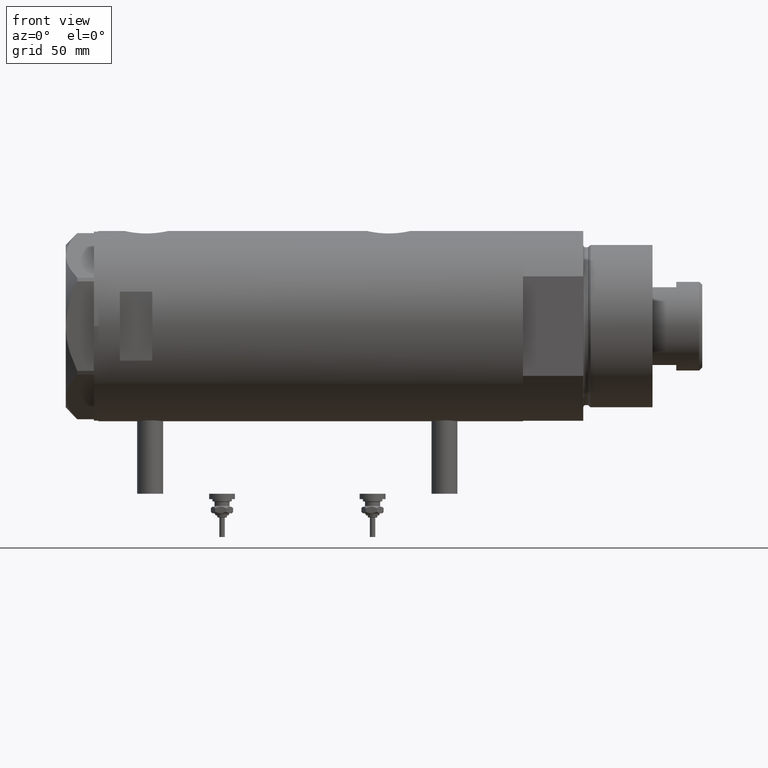
[diagram: clean part render]
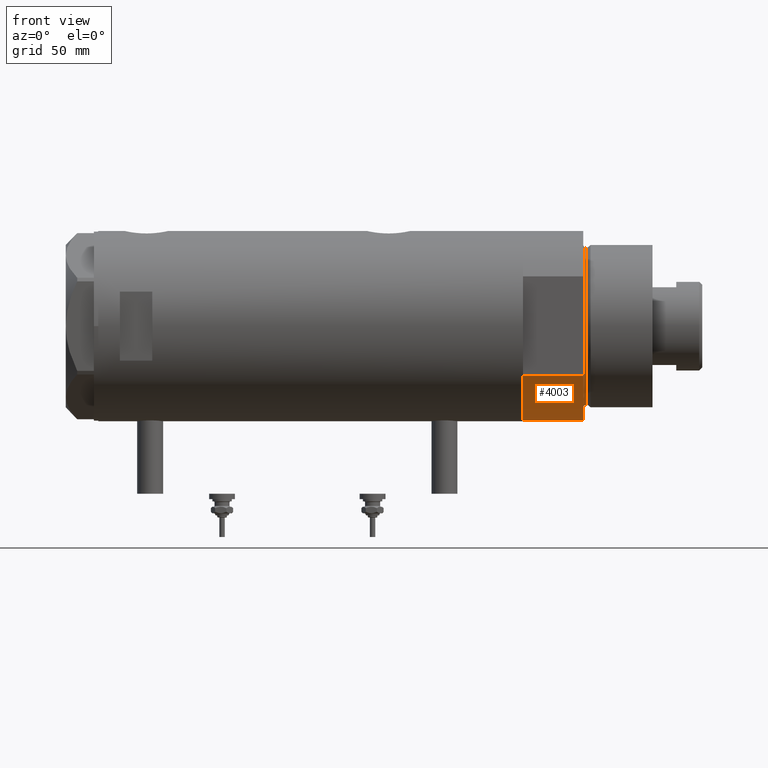
[diagram: same view with one face highlighted and labeled with its STEP entity id]
A machine part, front view. The second image highlights one B-rep face of the part: STEP entity #4003.
In plain terms, the highlighted cylindrical surface (partial cylindrical patch) has radius 44 mm, axis along (-1, -0, 0).
Its self-contained STEP definition (entity closure, byte-faithful):
#11 = ORIENTED_EDGE ( 'NONE', *, *, #1186, .F. ) ;
#52 = VERTEX_POINT ( 'NONE', #3089 ) ;
#963 = VERTEX_POINT ( 'NONE', #5971 ) ;
#1049 = EDGE_LOOP ( 'NONE', ( #11, #1832, #3093, #5922 ) ) ;
#1106 = EDGE_CURVE ( 'NONE', #963, #5779, #2052, .T. ) ;
#1186 = EDGE_CURVE ( 'NONE', #1213, #52, #3299, .T. ) ;
#1213 = VERTEX_POINT ( 'NONE', #3007 ) ;
#1593 = DIRECTION ( 'NONE',  ( 0.000000000000000000, 0.000000000000000000, 1.000000000000000000 ) ) ;
#1626 = CARTESIAN_POINT ( 'NONE',  ( 23.01629857296780557, 37.50000000000000000, 0.000000000000000000 ) ) ;
#1734 = CYLINDRICAL_SURFACE ( 'NONE', #5655, 44.00000000000000000 ) ;
#1832 = ORIENTED_EDGE ( 'NONE', *, *, #5130, .F. ) ;
#2052 = CIRCLE ( 'NONE', #2441, 44.00000000000000000 ) ;
#2441 = AXIS2_PLACEMENT_3D ( 'NONE', #3887, #1593, #2442 ) ;
#2442 = DIRECTION ( 'NONE',  ( 1.000000000000000000, 0.000000000000000000, 0.000000000000000000 ) ) ;
#2923 = AXIS2_PLACEMENT_3D ( 'NONE', #5330, #4992, #3043 ) ;
#2979 = LINE ( 'NONE', #1626, #3614 ) ;
#3007 = CARTESIAN_POINT ( 'NONE',  ( 23.01629857296780557, -37.50000000000000000, 27.89999999999999858 ) ) ;
#3043 = DIRECTION ( 'NONE',  ( 1.000000000000000000, 0.000000000000000000, 0.000000000000000000 ) ) ;
#3089 = CARTESIAN_POINT ( 'NONE',  ( 23.01629857296780557, 37.50000000000000000, 27.89999999999999858 ) ) ;
#3093 = ORIENTED_EDGE ( 'NONE', *, *, #1106, .T. ) ;
#3095 = DIRECTION ( 'NONE',  ( -0.000000000000000000, -0.000000000000000000, 1.000000000000000000 ) ) ;
#3299 = CIRCLE ( 'NONE', #2923, 44.00000000000000000 ) ;
#3435 = CARTESIAN_POINT ( 'NONE',  ( 0.000000000000000000, 0.000000000000000000, 27.89999999999999858 ) ) ;
#3614 = VECTOR ( 'NONE', #3095, 1000.000000000000000 ) ;
#3887 = CARTESIAN_POINT ( 'NONE',  ( 0.000000000000000000, 0.000000000000000000, 0.000000000000000000 ) ) ;
#3893 = DIRECTION ( 'NONE',  ( -1.000000000000000000, 0.000000000000000000, 0.000000000000000000 ) ) ;
#3924 = FACE_OUTER_BOUND ( 'NONE', #1049, .T. ) ;
#4003 = ADVANCED_FACE ( 'NONE', ( #3924 ), #1734, .T. ) ;
#4413 = DIRECTION ( 'NONE',  ( -0.000000000000000000, -0.000000000000000000, -1.000000000000000000 ) ) ;
#4432 = CARTESIAN_POINT ( 'NONE',  ( 23.01629857296780557, 37.50000000000000000, 0.000000000000000000 ) ) ;
#4697 = LINE ( 'NONE', #5135, #5476 ) ;
#4992 = DIRECTION ( 'NONE',  ( 0.000000000000000000, 0.000000000000000000, 1.000000000000000000 ) ) ;
#5130 = EDGE_CURVE ( 'NONE', #963, #1213, #4697, .T. ) ;
#5135 = CARTESIAN_POINT ( 'NONE',  ( 23.01629857296780557, -37.50000000000000000, 0.000000000000000000 ) ) ;
#5330 = CARTESIAN_POINT ( 'NONE',  ( 0.000000000000000000, 0.000000000000000000, 27.89999999999999858 ) ) ;
#5476 = VECTOR ( 'NONE', #5710, 1000.000000000000000 ) ;
#5655 = AXIS2_PLACEMENT_3D ( 'NONE', #3435, #4413, #3893 ) ;
#5710 = DIRECTION ( 'NONE',  ( -0.000000000000000000, -0.000000000000000000, 1.000000000000000000 ) ) ;
#5761 = EDGE_CURVE ( 'NONE', #5779, #52, #2979, .T. ) ;
#5779 = VERTEX_POINT ( 'NONE', #4432 ) ;
#5922 = ORIENTED_EDGE ( 'NONE', *, *, #5761, .T. ) ;
#5971 = CARTESIAN_POINT ( 'NONE',  ( 23.01629857296780557, -37.50000000000000000, 0.000000000000000000 ) ) ;